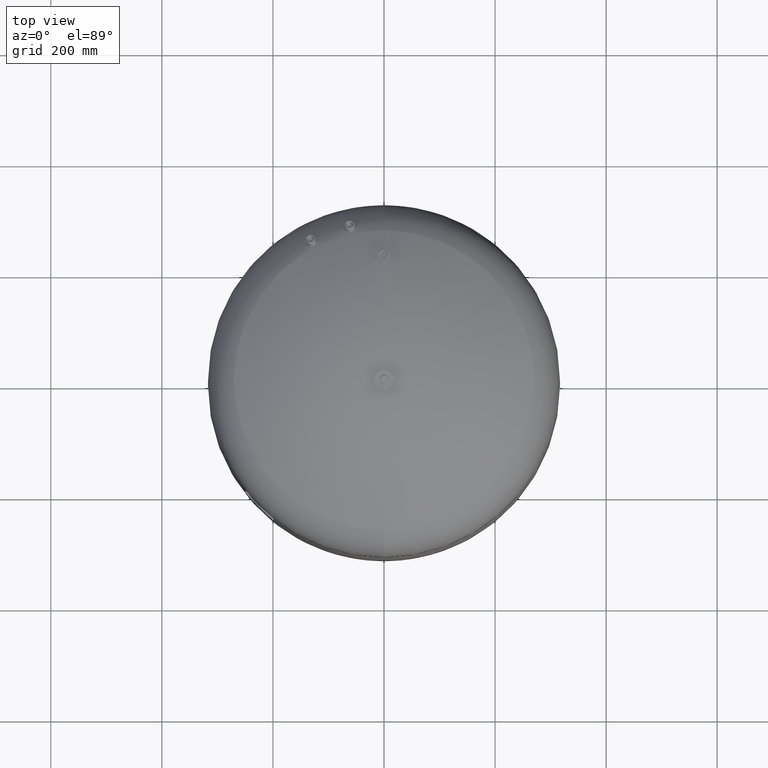
[diagram: clean part render]
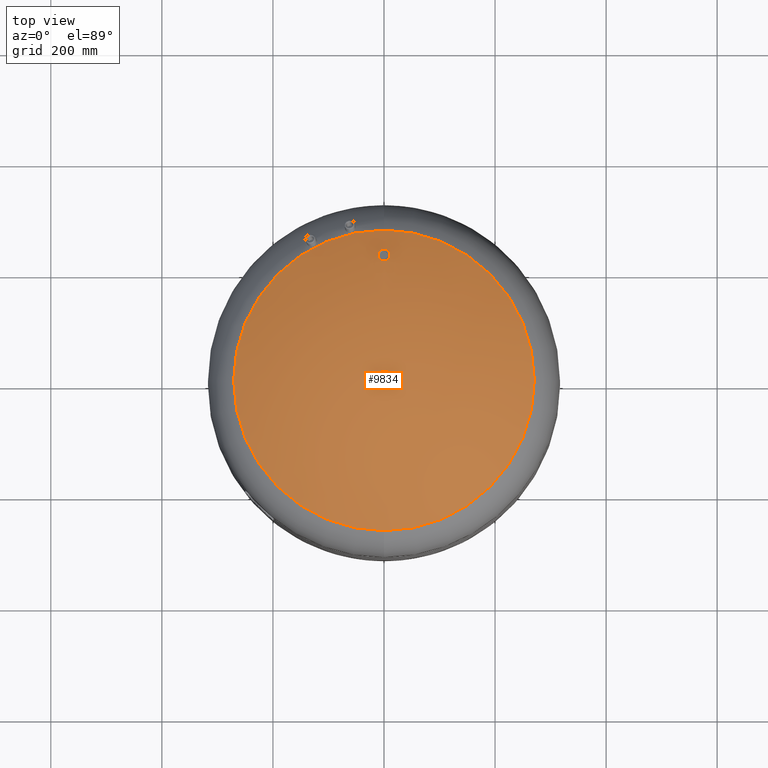
[diagram: same view with one face highlighted and labeled with its STEP entity id]
A machine part, top view. The second image highlights one B-rep face of the part: STEP entity #9834.
In plain terms, the highlighted spherical surface has radius 509 mm.
Its self-contained STEP definition (entity closure, byte-faithful):
#9064=CARTESIAN_POINT('',(-6.240420E-014,235.650000000000120,872.165244117939550));
#9065=VERTEX_POINT('',#9064);
#9081=CARTESIAN_POINT('',(-6.620164E-014,214.350000000000110,882.665547230893140));
#9082=VERTEX_POINT('',#9081);
#9089=CARTESIAN_POINT('',(-6.620164E-014,214.350000000000110,882.665547230893140));
#9090=CARTESIAN_POINT('',(0.665075310141527,214.350000000000110,882.665547230893140));
#9091=CARTESIAN_POINT('',(1.350206991556453,214.413353584532360,882.634674288250490));
#9092=CARTESIAN_POINT('',(2.707130270555042,214.676648463734840,882.506326944258830));
#9093=CARTESIAN_POINT('',(3.378937617180858,214.876523818335500,882.408883785880790));
#9094=CARTESIAN_POINT('',(4.661382011267419,215.399296597398350,882.153890027283640));
#9095=CARTESIAN_POINT('',(5.273228350756988,215.722643525670550,881.996117561115510));
#9096=CARTESIAN_POINT('',(6.400145528194803,216.461006054498910,881.635601390574950));
#9097=CARTESIAN_POINT('',(6.915220226390661,216.876015506415510,881.432857159922610));
#9098=CARTESIAN_POINT('',(7.882411787644009,217.803199265310070,880.979559876568490));
#9099=CARTESIAN_POINT('',(8.355764564403234,218.356660925888240,880.708784242652200));
#9100=CARTESIAN_POINT('',(9.182241075298267,219.555810038705540,880.121497219526080));
#9101=CARTESIAN_POINT('',(9.535457627618920,220.201444520697010,879.805008299407290));
#9102=CARTESIAN_POINT('',(10.099115955069610,221.541829722322630,879.147205930583370));
#9103=CARTESIAN_POINT('',(10.309941098322838,222.237445194945200,878.805465802148890));
#9104=CARTESIAN_POINT('',(10.585412503711682,223.630461165513710,878.120320409818990));
#9105=CARTESIAN_POINT('',(10.649999999999940,224.327870720086280,877.776909933315550));
#9106=CARTESIAN_POINT('',(10.649999999999940,225.673320027525530,877.113685005362870));
#9107=CARTESIAN_POINT('',(10.585186233959652,226.371633240987050,876.769087544930580));
#9108=CARTESIAN_POINT('',(10.309092786519162,227.765890682131210,876.080262495565310));
#9109=CARTESIAN_POINT('',(10.097876677712755,228.461845251053940,875.736030358912220));
#9110=CARTESIAN_POINT('',(9.533483876167788,229.802516962906960,875.072191438973850));
#9111=CARTESIAN_POINT('',(9.179930445894836,230.448092247452000,874.752161931152950));
#9112=CARTESIAN_POINT('',(8.352878926801351,231.646972675924700,874.157288658574320));
#9113=CARTESIAN_POINT('',(7.879287318994294,232.200227453226940,873.882473411625600));
#9114=CARTESIAN_POINT('',(6.912295769910375,233.126402901866330,873.422084984171190));
#9115=CARTESIAN_POINT('',(6.397727695451428,233.540752575368740,873.215957833523130));
#9116=CARTESIAN_POINT('',(5.271776081340166,234.278132956657430,872.848925358594220));
#9117=CARTESIAN_POINT('',(4.660386452013519,234.601157690451630,872.688026713840710));
#9118=CARTESIAN_POINT('',(3.378655177507927,235.123542806104210,872.427735275230020));
#9119=CARTESIAN_POINT('',(2.707097836372054,235.323352477943190,872.328121428751160));
#9120=CARTESIAN_POINT('',(1.350398402592688,235.586614625588960,872.196858617131850));
#9121=CARTESIAN_POINT('',(0.665239955652324,235.650000000000120,872.165244117939660));
#9122=CARTESIAN_POINT('',(-6.240420E-014,235.650000000000120,872.165244117939660));
#9123=B_SPLINE_CURVE_WITH_KNOTS('',3,(#9089,#9090,#9091,#9092,#9093,#9094,#9095,#9096,#9097,#9098,#9099,#9100,#9101,#9102,#9103,#9104,#9105,#9106,#9107,#9108,#9109,#9110,#9111,#9112,#9113,#9114,#9115,#9116,#9117,#9118,#9119,#9120,#9121,#9122),.UNSPECIFIED.,.F.,.U.,(4,2,2,2,2,2,2,2,2,2,2,2,2,2,2,2,4),(33.964187760767828,35.959413691192609,37.954639621617382,39.949865552042155,41.945091482466935,44.193150717350363,46.441209952233798,48.689269187117233,50.937328422000661,53.189370329927243,55.441412237853832,57.693454145780422,59.945496053707004,61.941215920664163,63.936935787621330,65.932655654578497,67.928375521535656),.UNSPECIFIED.);
#9124=EDGE_CURVE('',#9082,#9065,#9123,.T.);
#9633=CARTESIAN_POINT('',(8.065826E-015,270.639024390243830,852.086439681297630));
#9634=VERTEX_POINT('',#9633);
#9650=CARTESIAN_POINT('',(-2.507680E-014,-270.639024390243830,852.086439681297410));
#9651=VERTEX_POINT('',#9650);
#9659=CARTESIAN_POINT('',(-270.639024390243830,2.385415E-014,852.086439681297630));
#9660=VERTEX_POINT('',#9659);
#9661=CARTESIAN_POINT('',(-7.495146E-015,2.385415E-014,852.086439681297520));
#9662=DIRECTION('',(0.0,0.0,-1.0));
#9663=DIRECTION('',(-1.0,0.0,0.0));
#9664=AXIS2_PLACEMENT_3D('',#9661,#9662,#9663);
#9665=CIRCLE('',#9664,270.639024390243830);
#9666=EDGE_CURVE('',#9651,#9660,#9665,.T.);
#9668=CARTESIAN_POINT('',(-7.495146E-015,2.385415E-014,852.086439681297520));
#9669=DIRECTION('',(0.0,0.0,-1.0));
#9670=DIRECTION('',(-1.0,0.0,0.0));
#9671=AXIS2_PLACEMENT_3D('',#9668,#9669,#9670);
#9672=CIRCLE('',#9671,270.639024390243830);
#9673=EDGE_CURVE('',#9660,#9634,#9672,.T.);
#9778=CARTESIAN_POINT('',(-1.005746E-013,1.558363E-013,420.999999999999940));
#9779=DIRECTION('',(0.0,1.0,0.0));
#9780=DIRECTION('',(1.0,0.0,0.0));
#9781=AXIS2_PLACEMENT_3D('',#9778,#9779,#9780);
#9782=SPHERICAL_SURFACE('',#9781,509.000000000000060);
#9783=ORIENTED_EDGE('',*,*,#9673,.F.);
#9784=ORIENTED_EDGE('',*,*,#9666,.F.);
#9785=CARTESIAN_POINT('',(-7.495146E-015,2.385415E-014,852.086439681297520));
#9786=DIRECTION('',(0.0,0.0,-1.0));
#9787=DIRECTION('',(-1.0,0.0,0.0));
#9788=AXIS2_PLACEMENT_3D('',#9785,#9786,#9787);
#9789=CIRCLE('',#9788,270.639024390243830);
#9790=EDGE_CURVE('',#9634,#9651,#9789,.T.);
#9791=ORIENTED_EDGE('',*,*,#9790,.F.);
#9792=EDGE_LOOP('',(#9783,#9784,#9791));
#9793=FACE_OUTER_BOUND('',#9792,.T.);
#9794=CARTESIAN_POINT('',(-6.240420E-014,235.650000000000120,872.165244117939660));
#9795=CARTESIAN_POINT('',(-0.665239955652450,235.650000000000120,872.165244117939660));
#9796=CARTESIAN_POINT('',(-1.350398402592815,235.586614625588960,872.196858617131850));
#9797=CARTESIAN_POINT('',(-2.707097836372179,235.323352477943190,872.328121428751160));
#9798=CARTESIAN_POINT('',(-3.378655177508051,235.123542806104210,872.427735275230020));
#9799=CARTESIAN_POINT('',(-4.660386452013640,234.601157690451630,872.688026713840710));
#9800=CARTESIAN_POINT('',(-5.271776081340287,234.278132956657430,872.848925358594220));
#9801=CARTESIAN_POINT('',(-6.397727695451552,233.540752575368740,873.215957833523130));
#9802=CARTESIAN_POINT('',(-6.912295769910498,233.126402901866330,873.422084984171190));
#9803=CARTESIAN_POINT('',(-7.879287318994418,232.200227453226940,873.882473411625600));
#9804=CARTESIAN_POINT('',(-8.352878926801491,231.646972675924700,874.157288658574320));
#9805=CARTESIAN_POINT('',(-9.179930445894975,230.448092247452000,874.752161931152950));
#9806=CARTESIAN_POINT('',(-9.533483876167917,229.802516962906960,875.072191438973850));
#9807=CARTESIAN_POINT('',(-10.097876677712879,228.461845251053940,875.736030358912220));
#9808=CARTESIAN_POINT('',(-10.309092786519290,227.765890682131210,876.080262495565310));
#9809=CARTESIAN_POINT('',(-10.585186233959780,226.371633240987050,876.769087544930580));
#9810=CARTESIAN_POINT('',(-10.650000000000068,225.673320027525530,877.113685005362870));
#9811=CARTESIAN_POINT('',(-10.650000000000068,224.327870720086280,877.776909933315550));
#9812=CARTESIAN_POINT('',(-10.585412503711810,223.630461165513710,878.120320409818990));
#9813=CARTESIAN_POINT('',(-10.309941098322966,222.237445194945200,878.805465802148890));
#9814=CARTESIAN_POINT('',(-10.099115955069738,221.541829722322630,879.147205930583370));
#9815=CARTESIAN_POINT('',(-9.535457627619049,220.201444520697010,879.805008299407290));
#9816=CARTESIAN_POINT('',(-9.182241075298409,219.555810038705570,880.121497219526080));
#9817=CARTESIAN_POINT('',(-8.355764564403382,218.356660925888260,880.708784242652200));
#9818=CARTESIAN_POINT('',(-7.882411787644143,217.803199265310070,880.979559876568490));
#9819=CARTESIAN_POINT('',(-6.915220226390796,216.876015506415510,881.432857159922610));
#9820=CARTESIAN_POINT('',(-6.400145528194948,216.461006054498940,881.635601390574950));
#9821=CARTESIAN_POINT('',(-5.273228350757158,215.722643525670580,881.996117561115400));
#9822=CARTESIAN_POINT('',(-4.661382011267545,215.399296597398400,882.153890027283520));
#9823=CARTESIAN_POINT('',(-3.378937617180983,214.876523818335500,882.408883785880790));
#9824=CARTESIAN_POINT('',(-2.707130270555168,214.676648463734840,882.506326944258830));
#9825=CARTESIAN_POINT('',(-1.350206991556583,214.413353584532360,882.634674288250490));
#9826=CARTESIAN_POINT('',(-0.665075310141659,214.350000000000110,882.665547230893140));
#9827=CARTESIAN_POINT('',(-6.620164E-014,214.350000000000110,882.665547230893140));
#9828=B_SPLINE_CURVE_WITH_KNOTS('',3,(#9794,#9795,#9796,#9797,#9798,#9799,#9800,#9801,#9802,#9803,#9804,#9805,#9806,#9807,#9808,#9809,#9810,#9811,#9812,#9813,#9814,#9815,#9816,#9817,#9818,#9819,#9820,#9821,#9822,#9823,#9824,#9825,#9826,#9827),.UNSPECIFIED.,.F.,.U.,(4,2,2,2,2,2,2,2,2,2,2,2,2,2,2,2,4),(0.0,1.995719866957163,3.991439733914326,5.987159600871488,7.982879467828651,10.234921375755238,12.486963283681824,14.739005191608410,16.991047099534995,19.239106334418427,21.487165569301858,23.735224804185290,25.983284039068721,27.978509969493498,29.973735899918275,31.968961830343051,33.964187760767828),.UNSPECIFIED.);
#9829=EDGE_CURVE('',#9065,#9082,#9828,.T.);
#9830=ORIENTED_EDGE('',*,*,#9829,.F.);
#9831=ORIENTED_EDGE('',*,*,#9124,.F.);
#9832=EDGE_LOOP('',(#9830,#9831));
#9833=FACE_BOUND('',#9832,.T.);
#9834=ADVANCED_FACE('',(#9793,#9833),#9782,.T.);